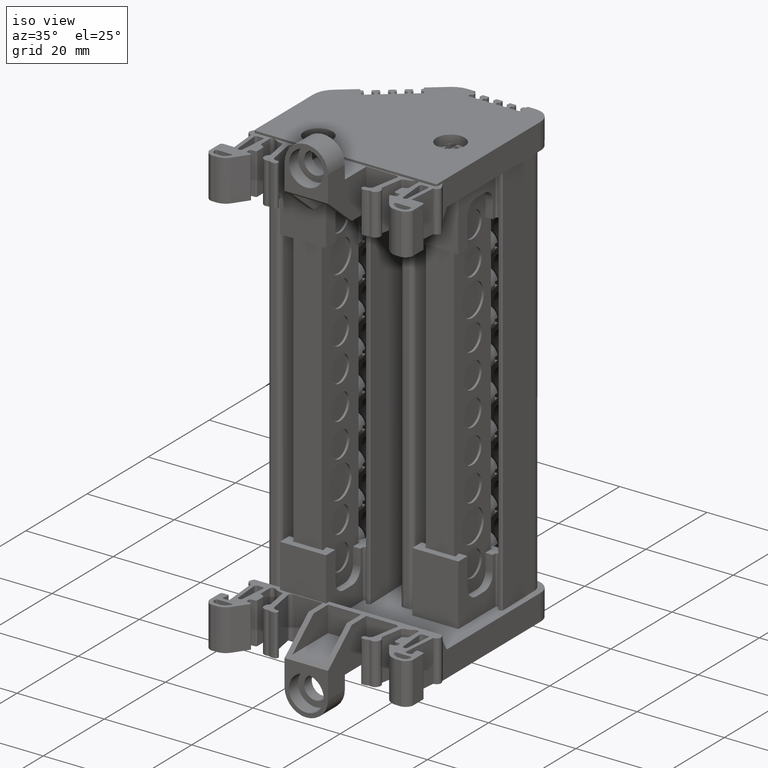
[diagram: clean part render]
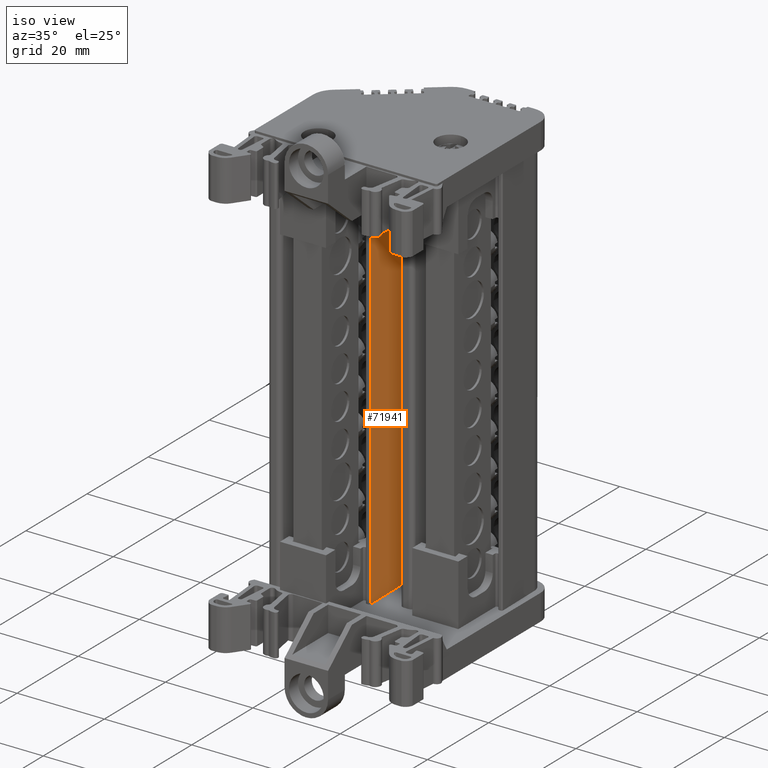
[diagram: same view with one face highlighted and labeled with its STEP entity id]
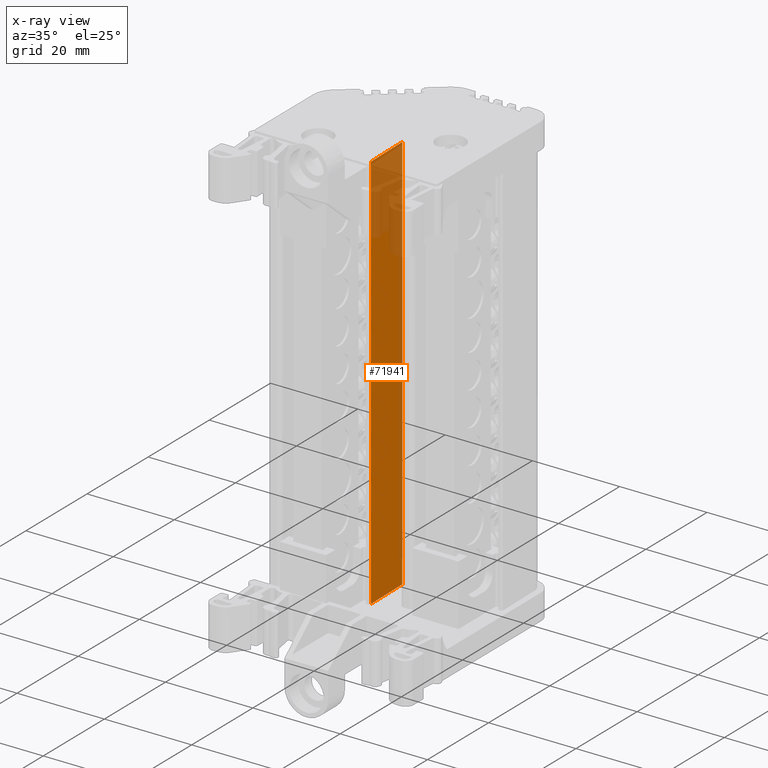
[diagram: x-ray of the same camera — body ghosted, the highlighted face saturated]
A machine part, iso view. The second image highlights one B-rep face of the part: STEP entity #71941.
The next image is the same camera in x-ray: the body ghosted, the highlighted face saturated — about 20% of this face is hidden behind the body in this view.
In plain terms, the highlighted planar face has unit normal (-0.9998, -0.0175, 0).
Its self-contained STEP definition (entity closure, byte-faithful):
#4360 = EDGE_LOOP ( 'NONE', ( #36323, #36366, #36357, #36379 ) ) ;
#6496 = VECTOR ( 'NONE', #30044, 1000.000000000000000 ) ;
#8106 = AXIS2_PLACEMENT_3D ( 'NONE', #68552, #68535, #68504 ) ;
#9162 = VECTOR ( 'NONE', #15480, 1000.000000000000000 ) ;
#9206 = VECTOR ( 'NONE', #15443, 1000.000000000000000 ) ;
#15433 = LINE ( 'NONE', #15439, #9206 ) ;
#15439 = CARTESIAN_POINT ( 'NONE',  ( -49.29193950094763500, 33.60436923970534900, 55.46945965624126300 ) ) ;
#15443 = DIRECTION ( 'NONE',  ( 0.01745240643726278500, -0.9998476951563916000, 6.549614861095987600E-015 ) ) ;
#15474 = CARTESIAN_POINT ( 'NONE',  ( -49.10704252735145300, 23.01162871389679400, -37.12593807024467200 ) ) ;
#15480 = DIRECTION ( 'NONE',  ( 5.326802691273078200E-013, 9.297968683586594100E-015, 1.000000000000000000 ) ) ;
#15492 = LINE ( 'NONE', #15474, #9162 ) ;
#18789 = DIRECTION ( 'NONE',  ( -5.325625425352352500E-013, -1.604252062634170100E-014, -1.000000000000000000 ) ) ;
#18809 = CARTESIAN_POINT ( 'NONE',  ( -49.29193950098963500, 33.60436923970407700, -23.93093807035823100 ) ) ;
#18824 = LINE ( 'NONE', #18809, #25279 ) ;
#24493 = VERTEX_POINT ( 'NONE', #73842 ) ;
#24507 = VERTEX_POINT ( 'NONE', #49706 ) ;
#25279 = VECTOR ( 'NONE', #18789, 1000.000000000000000 ) ;
#30002 = LINE ( 'NONE', #30035, #6496 ) ;
#30035 = CARTESIAN_POINT ( 'NONE',  ( -49.10704252735090600, 23.01162871389680500, -36.09641155510394100 ) ) ;
#30044 = DIRECTION ( 'NONE',  ( -0.01745240643726278900, 0.9998476951563916000, -6.549614861095989200E-015 ) ) ;
#36323 = ORIENTED_EDGE ( 'NONE', *, *, #53398, .F. ) ;
#36357 = ORIENTED_EDGE ( 'NONE', *, *, #47397, .F. ) ;
#36366 = ORIENTED_EDGE ( 'NONE', *, *, #47402, .T. ) ;
#36379 = ORIENTED_EDGE ( 'NONE', *, *, #73249, .T. ) ;
#47397 = EDGE_CURVE ( 'NONE', #24507, #58573, #15492, .T. ) ;
#47402 = EDGE_CURVE ( 'NONE', #58637, #58573, #15433, .T. ) ;
#49706 = CARTESIAN_POINT ( 'NONE',  ( -49.10704252735082800, 23.01162871389680800, -36.09641155510395500 ) ) ;
#53398 = EDGE_CURVE ( 'NONE', #58637, #24493, #18824, .T. ) ;
#58573 = VERTEX_POINT ( 'NONE', #59021 ) ;
#58637 = VERTEX_POINT ( 'NONE', #59055 ) ;
#59021 = CARTESIAN_POINT ( 'NONE',  ( -49.10704252730209200, 23.01162871389781000, 55.46945965624134100 ) ) ;
#59055 = CARTESIAN_POINT ( 'NONE',  ( -49.29193950094749300, 33.60436923970534900, 55.46945965624127000 ) ) ;
#68504 = DIRECTION ( 'NONE',  ( 0.01745240643726290300, -0.9998476951563916000, 0.0000000000000000000 ) ) ;
#68525 = PLANE ( 'NONE',  #8106 ) ;
#68535 = DIRECTION ( 'NONE',  ( -0.9998476951563916000, -0.01745240643726290300, 5.327614112707320100E-013 ) ) ;
#68538 = FACE_OUTER_BOUND ( 'NONE', #4360, .T. ) ;
#68552 = CARTESIAN_POINT ( 'NONE',  ( -49.10704252735149600, 23.01162871389908600, -37.12593807024467200 ) ) ;
#71941 = ADVANCED_FACE ( 'NONE', ( #68538 ), #68525, .F. ) ;
#73249 = EDGE_CURVE ( 'NONE', #24507, #24493, #30002, .T. ) ;
#73842 = CARTESIAN_POINT ( 'NONE',  ( -49.29193950099618600, 33.60436923970403500, -36.09641155510401200 ) ) ;